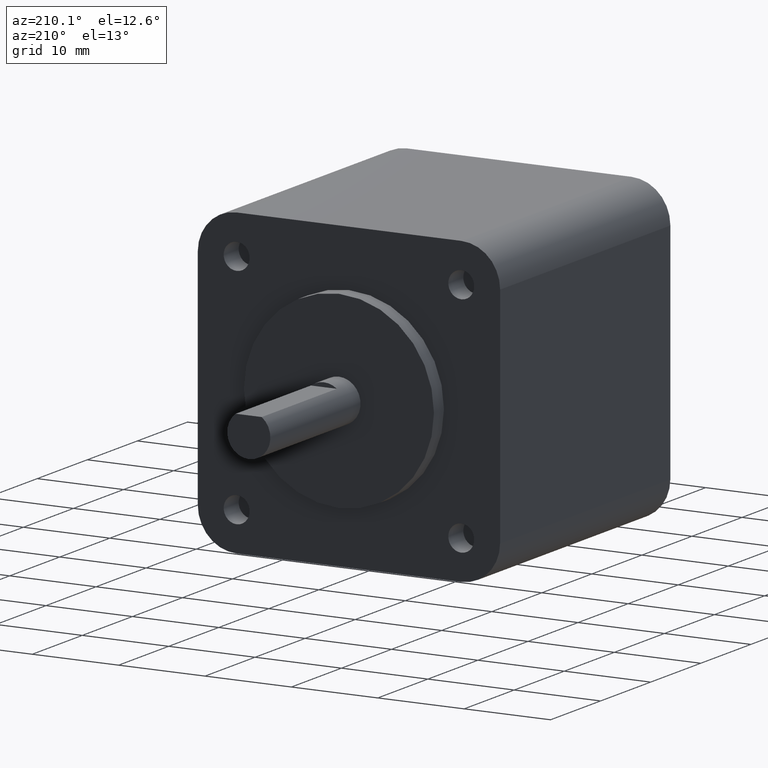
[diagram: clean part render]
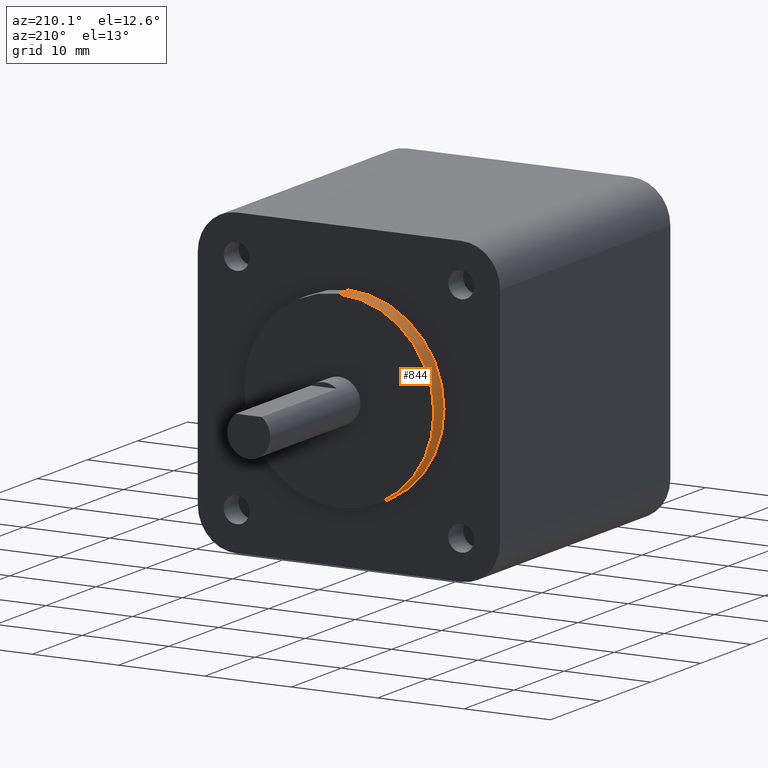
[diagram: same view with one face highlighted and labeled with its STEP entity id]
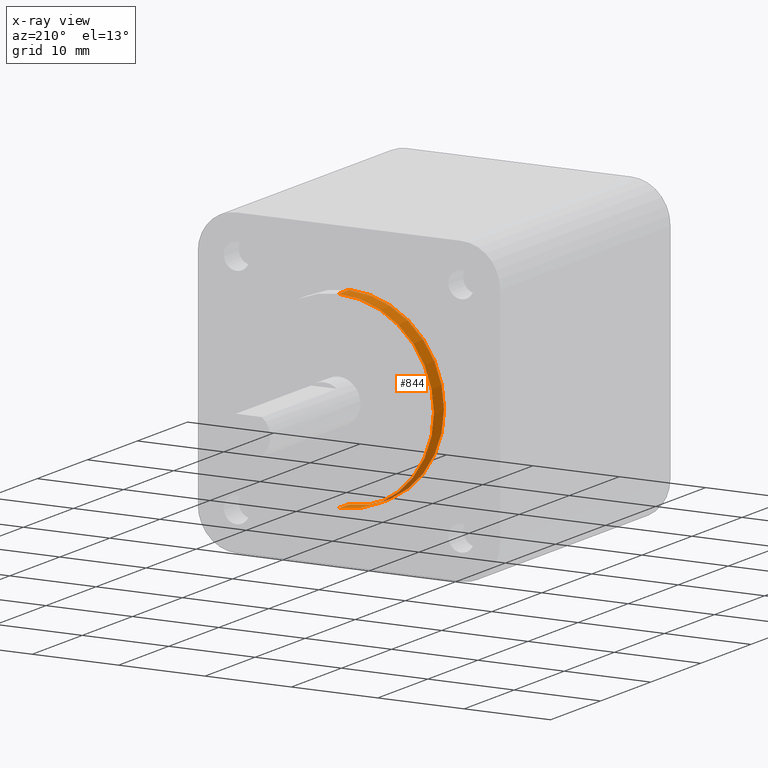
[diagram: x-ray of the same camera — body ghosted, the highlighted face saturated]
A machine part, auxiliary view. The second image highlights one B-rep face of the part: STEP entity #844.
The next image is the same camera in x-ray: the body ghosted, the highlighted face saturated — about 0% of this face is hidden behind the body in this view.
In plain terms, the highlighted cylindrical surface (partial cylindrical patch) has radius 11 mm, axis along (-0, -1, -0).
Its self-contained STEP definition (entity closure, byte-faithful):
#10 = CARTESIAN_POINT ( 'NONE',  ( 0.0000000000000000000, 36.00000000000000700, 0.0000000000000000000 ) ) ;
#38 = DIRECTION ( 'NONE',  ( -0.0000000000000000000, -1.000000000000000000, -0.0000000000000000000 ) ) ;
#55 = EDGE_CURVE ( 'NONE', #460, #380, #417, .T. ) ;
#62 = VERTEX_POINT ( 'NONE', #748 ) ;
#63 = EDGE_LOOP ( 'NONE', ( #316, #627, #185, #614 ) ) ;
#108 = CARTESIAN_POINT ( 'NONE',  ( 0.0000000000000000000, 36.00000000000000700, 0.0000000000000000000 ) ) ;
#120 = CARTESIAN_POINT ( 'NONE',  ( 1.347111479062088400E-015, 34.00000000000000000, 11.00000000000000000 ) ) ;
#135 = FACE_OUTER_BOUND ( 'NONE', #63, .T. ) ;
#185 = ORIENTED_EDGE ( 'NONE', *, *, #211, .T. ) ;
#211 = EDGE_CURVE ( 'NONE', #62, #460, #653, .T. ) ;
#250 = CARTESIAN_POINT ( 'NONE',  ( 0.0000000000000000000, 34.00000000000000000, -11.00000000000000000 ) ) ;
#287 = DIRECTION ( 'NONE',  ( -0.0000000000000000000, -1.000000000000000000, -0.0000000000000000000 ) ) ;
#316 = ORIENTED_EDGE ( 'NONE', *, *, #792, .F. ) ;
#358 = LINE ( 'NONE', #631, #405 ) ;
#380 = VERTEX_POINT ( 'NONE', #120 ) ;
#402 = DIRECTION ( 'NONE',  ( 0.0000000000000000000, 1.000000000000000000, 0.0000000000000000000 ) ) ;
#405 = VECTOR ( 'NONE', #287, 1000.000000000000000 ) ;
#417 = CIRCLE ( 'NONE', #874, 11.00000000000000000 ) ;
#423 = AXIS2_PLACEMENT_3D ( 'NONE', #10, #402, #747 ) ;
#460 = VERTEX_POINT ( 'NONE', #250 ) ;
#467 = CIRCLE ( 'NONE', #423, 11.00000000000000000 ) ;
#493 = CARTESIAN_POINT ( 'NONE',  ( 0.0000000000000000000, 36.00000000000000700, -11.00000000000000000 ) ) ;
#536 = CARTESIAN_POINT ( 'NONE',  ( 1.347111479062088400E-015, 36.00000000000000700, 11.00000000000000000 ) ) ;
#568 = DIRECTION ( 'NONE',  ( -0.0000000000000000000, -1.000000000000000000, -0.0000000000000000000 ) ) ;
#606 = DIRECTION ( 'NONE',  ( 0.0000000000000000000, 0.0000000000000000000, 1.000000000000000000 ) ) ;
#613 = EDGE_CURVE ( 'NONE', #62, #636, #467, .T. ) ;
#614 = ORIENTED_EDGE ( 'NONE', *, *, #55, .T. ) ;
#627 = ORIENTED_EDGE ( 'NONE', *, *, #613, .F. ) ;
#631 = CARTESIAN_POINT ( 'NONE',  ( 1.347111479062088400E-015, 36.00000000000000700, 11.00000000000000000 ) ) ;
#636 = VERTEX_POINT ( 'NONE', #536 ) ;
#653 = LINE ( 'NONE', #493, #833 ) ;
#677 = DIRECTION ( 'NONE',  ( 0.0000000000000000000, 1.000000000000000000, 0.0000000000000000000 ) ) ;
#747 = DIRECTION ( 'NONE',  ( 0.0000000000000000000, 0.0000000000000000000, 1.000000000000000000 ) ) ;
#748 = CARTESIAN_POINT ( 'NONE',  ( 0.0000000000000000000, 36.00000000000000700, -11.00000000000000000 ) ) ;
#773 = DIRECTION ( 'NONE',  ( 0.0000000000000000000, 0.0000000000000000000, -1.000000000000000000 ) ) ;
#792 = EDGE_CURVE ( 'NONE', #636, #380, #358, .T. ) ;
#814 = CARTESIAN_POINT ( 'NONE',  ( 0.0000000000000000000, 34.00000000000000000, 0.0000000000000000000 ) ) ;
#833 = VECTOR ( 'NONE', #568, 1000.000000000000000 ) ;
#844 = ADVANCED_FACE ( 'NONE', ( #135 ), #869, .T. ) ;
#854 = AXIS2_PLACEMENT_3D ( 'NONE', #108, #38, #773 ) ;
#869 = CYLINDRICAL_SURFACE ( 'NONE', #854, 11.00000000000000000 ) ;
#874 = AXIS2_PLACEMENT_3D ( 'NONE', #814, #677, #606 ) ;